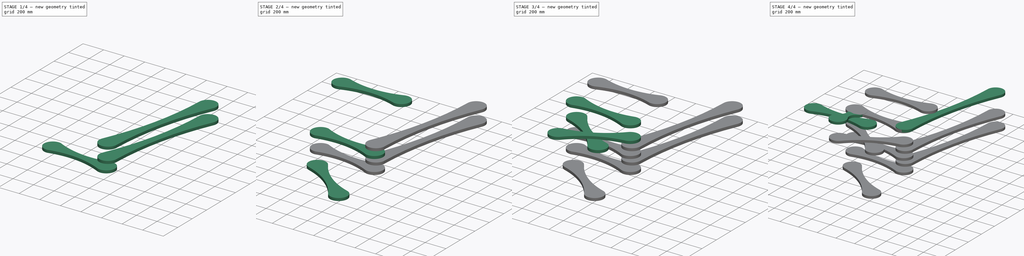
[diagram: build sequence overview — one tinted view per stage of 4, left to right]
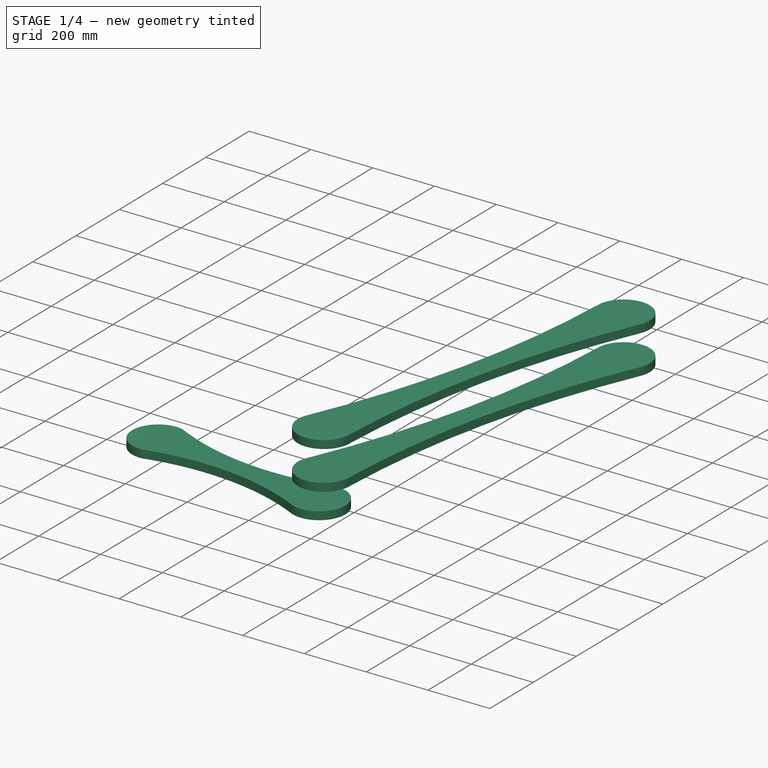
[diagram: stage 1 of 4 — iso view after this stage's code; geometry added in this stage tinted green]
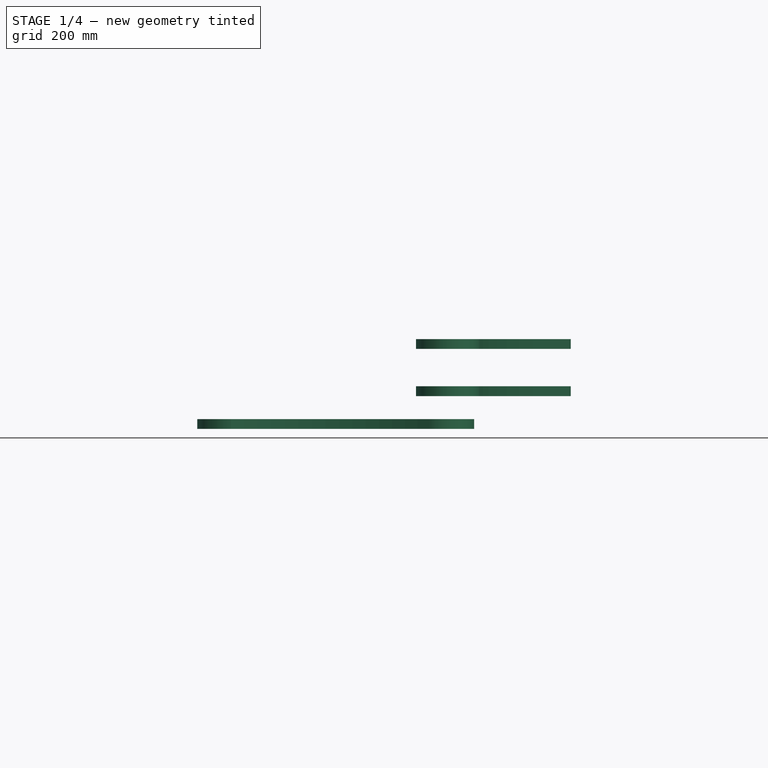
[diagram: stage 1 of 4 — front view after this stage's code; geometry added in this stage tinted green]
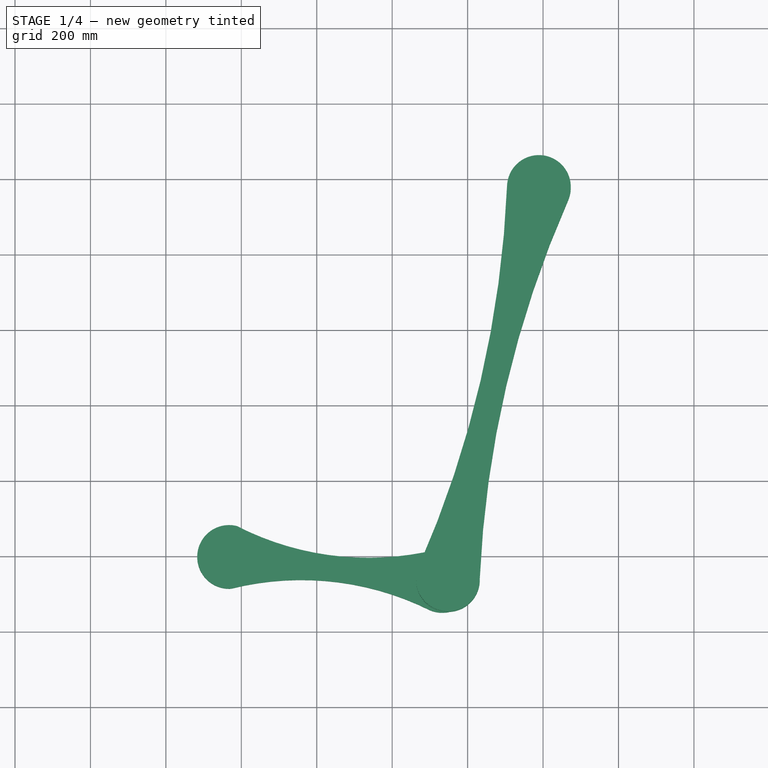
[diagram: stage 1 of 4 — top view after this stage's code; geometry added in this stage tinted green]
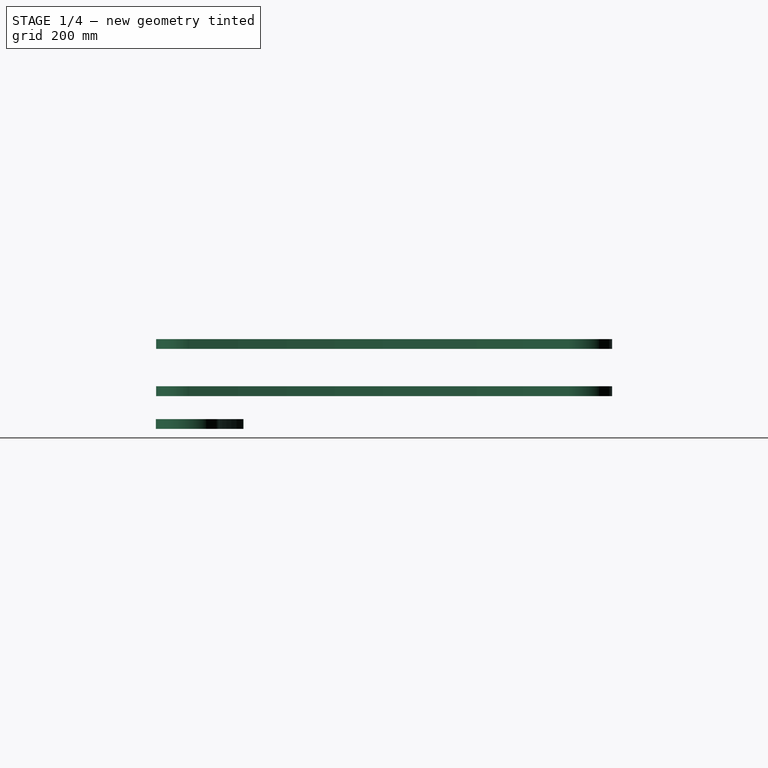
[diagram: stage 1 of 4 — right view after this stage's code; geometry added in this stage tinted green]
FCSTD DOCUMENT  (FreeCAD 0.20R29177 +426 (Git))
Label: rocking_chair
License: All rights reserved
LicenseURL: http://en.wikipedia.org/wiki/All_rights_reserved
objects: Part::Extrusion×12, Sketcher::SketchObject×11, Surface::Filling×9, App::Part×8, PartDesign::Body×1
note: 33 computed .brp shape members not serialized (recipe doc carries the construction recipe); baked Part::Feature solids carry a one-line shape summary decoded from their .brp

FEATURE [App::Part] Part005  label="Front Bottom001"
  Group = -> [Sketch005,Surface007,Extrude011,Extrude008]
  Origin = -> Origin006
  Placement = pos=(27,-41,256) rot=(0,0,1;0rad)
FEATURE [Part::Extrusion] Extrude012
  Base = -> Surface004
  Dir = (0,0,26)
  DirMode = 0
  FaceMakerClass = Part::FaceMakerBullseye
  LengthFwd = 26
  LengthRev = 0
  Placement = pos=(1153,115,-130) rot=(0,0,1;0rad)
  Solid = false
  Symmetric = false
FEATURE [Part::Extrusion] Extrude013
  Base = -> Surface004
  Dir = (0,0,26)
  DirMode = 0
  FaceMakerClass = Part::FaceMakerBullseye
  LengthFwd = 26
  LengthRev = 0
  Placement = pos=(1153,115,-255) rot=(0,0,1;0rad)
  Solid = false
  Symmetric = false
FEATURE [App::Part] Part  label="back"
  Group = -> [Sketch001,Surface004,Extrude003,Extrude012,Extrude013]
  Origin = -> Origin001
FEATURE [Sketcher::SketchObject] Sketch010  label="Ass003"
  FullyConstrained = false
  MapMode = 5
  Support = -> [XY_Plane011]
  sketch-geometry (8):
    g0: LineSegment StartX=-321.965 StartY=107.372 StartZ=0 EndX=95.4108 EndY=60.4971 EndZ=0
    g1: LineSegment StartX=95.4108 StartY=60.4971 StartZ=0 EndX=87.7099 EndY=-8.07178 EndZ=0
    g2: LineSegment StartX=87.7099 StartY=-8.07178 StartZ=0 EndX=-329.666 EndY=38.8032 EndZ=0
    g3: LineSegment StartX=-329.666 StartY=38.8032 StartZ=0 EndX=-321.965 EndY=107.372 EndZ=0
    g4: ArcOfCircle CenterX=-30.8324 CenterY=844.773 CenterZ=0 NormalX=0 NormalY=0 NormalZ=1 AngleXU=0 Radius=765.287 StartAngle=4.2388 EndAngle=4.95449
    g5: ArcOfCircle CenterX=-208.939 CenterY=-744.853 CenterZ=0 NormalX=0 NormalY=0 NormalZ=1 AngleXU=0 Radius=765.287 StartAngle=1.10967 EndAngle=1.81682
    g6: ArcOfCircle CenterX=-400.362 CenterY=81.7388 CenterZ=0 NormalX=0 NormalY=0 NormalZ=1 AngleXU=0 Radius=84.5 StartAngle=1.32577 EndAngle=4.77203
    g7: ArcOfCircle CenterX=164.821 CenterY=18.1876 CenterZ=0 NormalX=0 NormalY=0 NormalZ=1 AngleXU=0 Radius=84.5 StartAngle=4.30807 EndAngle=7.99867
  constraints (18):
    c: Equal(g0,g2)
    c: Equal(g3,g1)
    c: Perpendicular(g3,g0)
    c: Coincident(g0,g3)
    c: Coincident(g3,g2)
    c: Coincident(g1,g0)
    c: Coincident(g1,g2)
    c: Distance(g3) = 69
    c: Distance(g0) = 420
    c: Tangent(g4,g0)
    c: Tangent(g5,g2)
    c: Coincident(g6,g4)
    c: Coincident(g6,g5)
    c: Diameter(g6) = 169
    c: Coincident(g7,g4)
    c: Coincident(g7,g5)
    c: Equal(g6,g7)
    c: Equal(g5,g4)
FEATURE [Surface::Filling] Surface010
  Anisotropy = false
  BoundaryEdges = -> [Sketch010]
  BoundaryOrder = [0,0,0,0]
  Degree = 3
  Iterations = 2
  MaximumDegree = 8
  MaximumSegments = 9
  PointsOnCurve = 15
  TolAngular = 0.01
  TolCurvature = 0.1
  Tolerance2d = 1e-05
  Tolerance3d = 0.0001
FEATURE [Part::Extrusion] Extrude014
  Base = -> Surface010
  Dir = (0,0,26)
  DirMode = 0
  FaceMakerClass = Part::FaceMakerBullseye
  LengthFwd = 26
  LengthRev = 0
  Placement = pos=(368,117,-342) rot=(0,0,1;0rad)
  Solid = false
  Symmetric = false
FEATURE [App::Part] Part003  label="Ass001"
  Group = -> [Sketch004,Surface005,Extrude004,Surface009,Extrude010,Sketch009,Extrude014,Sketch010,Surface010]
  Origin = -> Origin004
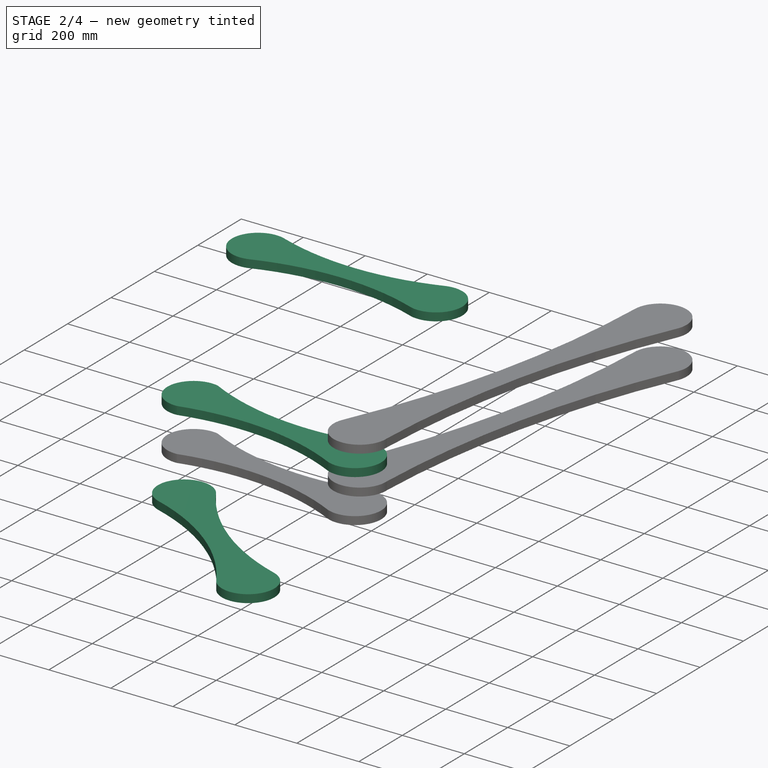
[diagram: stage 2 of 4 — iso view after this stage's code; geometry added in this stage tinted green]
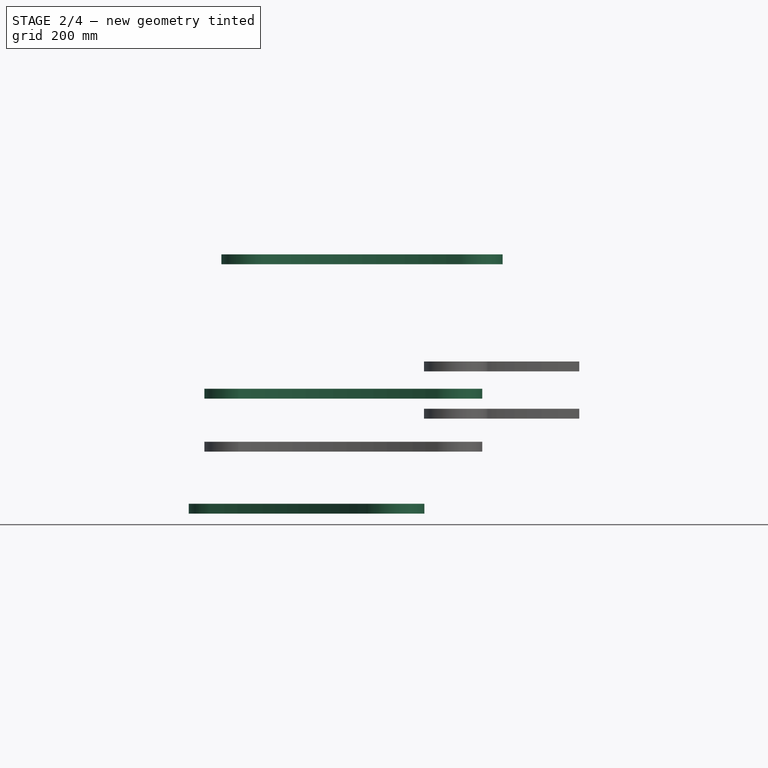
[diagram: stage 2 of 4 — front view after this stage's code; geometry added in this stage tinted green]
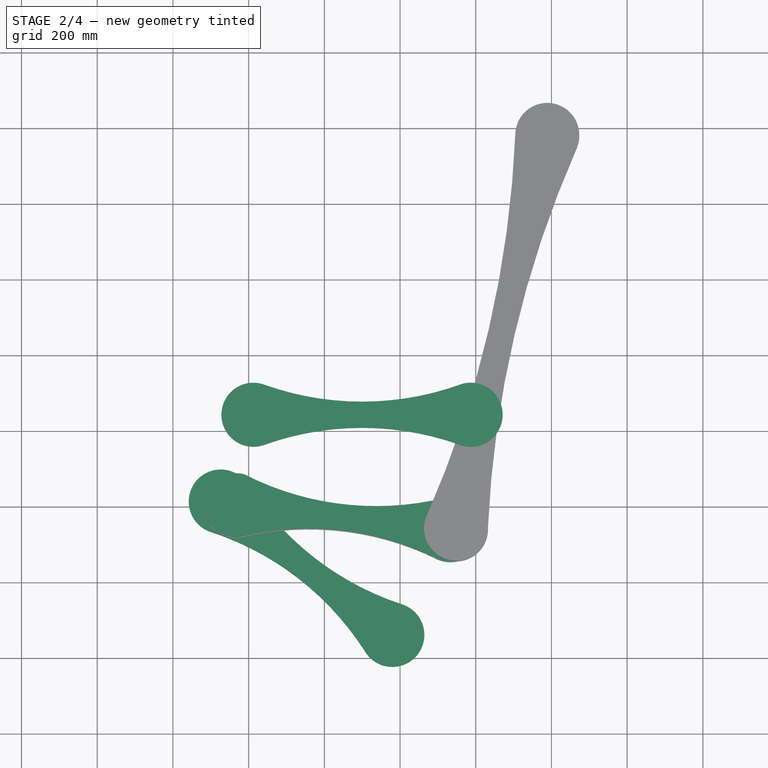
[diagram: stage 2 of 4 — top view after this stage's code; geometry added in this stage tinted green]
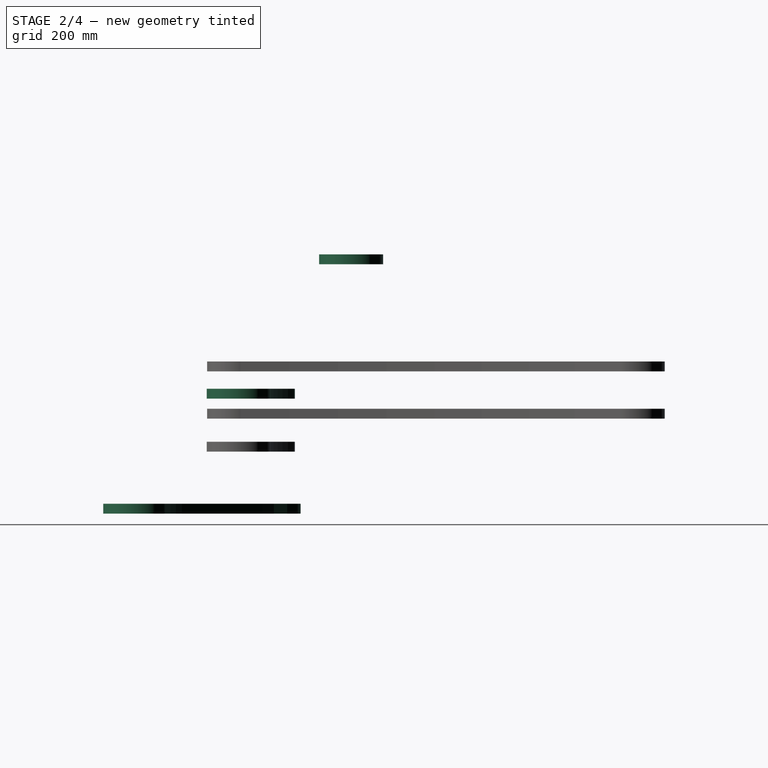
[diagram: stage 2 of 4 — right view after this stage's code; geometry added in this stage tinted green]
FEATURE [Sketcher::SketchObject] Sketch008  label="Arm rest001"
  FullyConstrained = false
  MapMode = 5
  Support = -> [XY_Plane009]
  sketch-geometry (8):
    g0: LineSegment StartX=-411.283 StartY=160.273 StartZ=0 EndX=8.71732 EndY=160.273 EndZ=0
    g1: LineSegment StartX=8.71732 StartY=160.273 StartZ=0 EndX=8.71732 EndY=91.2726 EndZ=0
    g2: LineSegment StartX=8.71732 StartY=91.2726 StartZ=0 EndX=-411.283 EndY=91.2726 EndZ=0
    g3: LineSegment StartX=-411.283 StartY=91.2726 StartZ=0 EndX=-411.283 EndY=160.273 EndZ=0
    g4: ArcOfCircle CenterX=-201.283 CenterY=925.245 CenterZ=0 NormalX=0 NormalY=0 NormalZ=1 AngleXU=0 Radius=764.972 StartAngle=4.36755 EndAngle=5.06356
    g5: ArcOfCircle CenterX=-201.283 CenterY=-673.7 CenterZ=0 NormalX=0 NormalY=0 NormalZ=1 AngleXU=0 Radius=764.972 StartAngle=1.22598 EndAngle=1.91564
    g6: ArcOfCircle CenterX=-488.419 CenterY=125.773 CenterZ=0 NormalX=0 NormalY=0 NormalZ=1 AngleXU=0 Radius=84.5 StartAngle=1.22627 EndAngle=5.05692
    g7: ArcOfCircle CenterX=85.6048 CenterY=125.861 CenterZ=0 NormalX=0 NormalY=0 NormalZ=1 AngleXU=0 Radius=84.5 StartAngle=4.37077 EndAngle=8.13875
  constraints (18):
    c: Coincident(g1,g0)
    c: Coincident(g2,g1)
    c: Coincident(g3,g0)
    c: Vertical(g3)
    c: Parallel(g0,g2)
    c: Parallel(g1,g3)
    c: Perpendicular(g3,g0)
    c: Distance(g3) = 69
    c: Coincident(g2,g3)
    c: Distance(g2) = 420
    c: Tangent(g4,g0)
    c: Tangent(g5,g2)
    c: Coincident(g6,g5)
    c: Coincident(g6,g4)
    c: Diameter(g6) = 169
    c: Coincident(g7,g4)
    c: Coincident(g7,g5)
    c: Diameter(g7) = 169
FEATURE [Surface::Filling] Surface008
  Anisotropy = false
  BoundaryEdges = -> [Sketch008]
  BoundaryOrder = [0,0,0,0]
  Degree = 3
  Iterations = 2
  MaximumDegree = 8
  MaximumSegments = 9
  PointsOnCurve = 15
  TolAngular = 0.01
  TolCurvature = 0.1
  Tolerance2d = 1e-05
  Tolerance3d = 0.0001
FEATURE [Part::Extrusion] Extrude009
  Base = -> Surface008
  Dir = (0,0,26)
  DirMode = 0
  FaceMakerClass = Part::FaceMakerBullseye
  LengthFwd = 26
  LengthRev = 0
  Placement = pos=(501,306,153) rot=(0,0,1;0rad)
  Solid = false
  Symmetric = false
FEATURE [App::Part] Part007  label="Outer_arm_rest"
  Group = -> [Surface008,Extrude009,Sketch008]
  Origin = -> Origin008
FEATURE [Sketcher::SketchObject] Sketch009  label="Ass002"
  FullyConstrained = false
  MapMode = 5
  Support = -> [XY_Plane004]
  sketch-geometry (8):
    g0: LineSegment StartX=-321.965 StartY=107.372 StartZ=0 EndX=95.4108 EndY=60.4971 EndZ=0
    g1: LineSegment StartX=95.4108 StartY=60.4971 StartZ=0 EndX=87.7099 EndY=-8.07178 EndZ=0
    g2: LineSegment StartX=87.7099 StartY=-8.07178 StartZ=0 EndX=-329.666 EndY=38.8032 EndZ=0
    g3: LineSegment StartX=-329.666 StartY=38.8032 StartZ=0 EndX=-321.965 EndY=107.372 EndZ=0
    g4: ArcOfCircle CenterX=-30.8324 CenterY=844.773 CenterZ=0 NormalX=0 NormalY=0 NormalZ=1 AngleXU=0 Radius=765.287 StartAngle=4.2388 EndAngle=4.95449
    g5: ArcOfCircle CenterX=-208.939 CenterY=-744.853 CenterZ=0 NormalX=0 NormalY=0 NormalZ=1 AngleXU=0 Radius=765.287 StartAngle=1.10967 EndAngle=1.81682
    g6: ArcOfCircle CenterX=-400.362 CenterY=81.7388 CenterZ=0 NormalX=0 NormalY=0 NormalZ=1 AngleXU=0 Radius=84.5 StartAngle=1.32577 EndAngle=4.77203
    g7: ArcOfCircle CenterX=164.821 CenterY=18.1876 CenterZ=0 NormalX=0 NormalY=0 NormalZ=1 AngleXU=0 Radius=84.5 StartAngle=4.30807 EndAngle=7.99867
  constraints (18):
    c: Equal(g0,g2)
    c: Equal(g3,g1)
    c: Perpendicular(g3,g0)
    c: Coincident(g0,g3)
    c: Coincident(g3,g2)
    c: Coincident(g1,g0)
    c: Coincident(g1,g2)
    c: Distance(g3) = 69
    c: Distance(g0) = 420
    c: Tangent(g4,g0)
    c: Tangent(g5,g2)
    c: Coincident(g6,g4)
    c: Coincident(g6,g5)
    c: Diameter(g6) = 169
    c: Coincident(g7,g4)
    c: Coincident(g7,g5)
    c: Equal(g6,g7)
    c: Equal(g5,g4)
FEATURE [Surface::Filling] Surface009
  Anisotropy = false
  BoundaryEdges = -> [Sketch009]
  BoundaryOrder = [0,0,0,0]
  Degree = 3
  Iterations = 2
  MaximumDegree = 8
  MaximumSegments = 9
  PointsOnCurve = 15
  TolAngular = 0.01
  TolCurvature = 0.1
  Tolerance2d = 1e-05
  Tolerance3d = 0.0001
FEATURE [Part::Extrusion] Extrude010
  Base = -> Surface009
  Dir = (0,0,26)
  DirMode = 0
  FaceMakerClass = Part::FaceMakerBullseye
  LengthFwd = 26
  LengthRev = 0
  Placement = pos=(368,117,-202) rot=(0,0,1;0rad)
  Solid = false
  Symmetric = false
FEATURE [Part::Extrusion] Extrude011
  Base = -> Surface007
  Dir = (0,0,26)
  DirMode = 0
  FaceMakerClass = Part::FaceMakerBullseye
  LengthFwd = 26
  LengthRev = 0
  Placement = pos=(246.348,38.7291,-506) rot=(0,0,-1;0.523599rad)
  Solid = false
  Symmetric = false
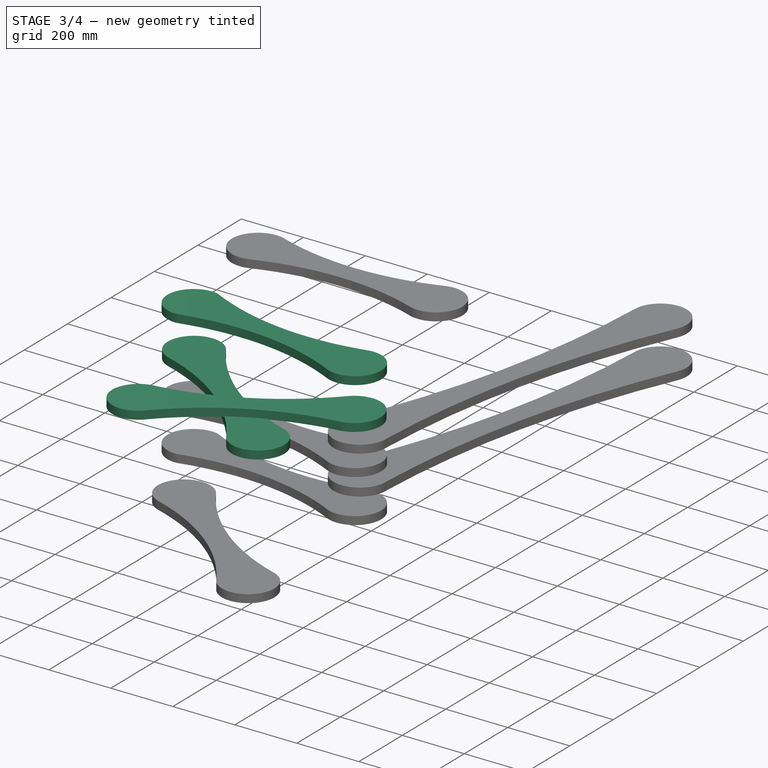
[diagram: stage 3 of 4 — iso view after this stage's code; geometry added in this stage tinted green]
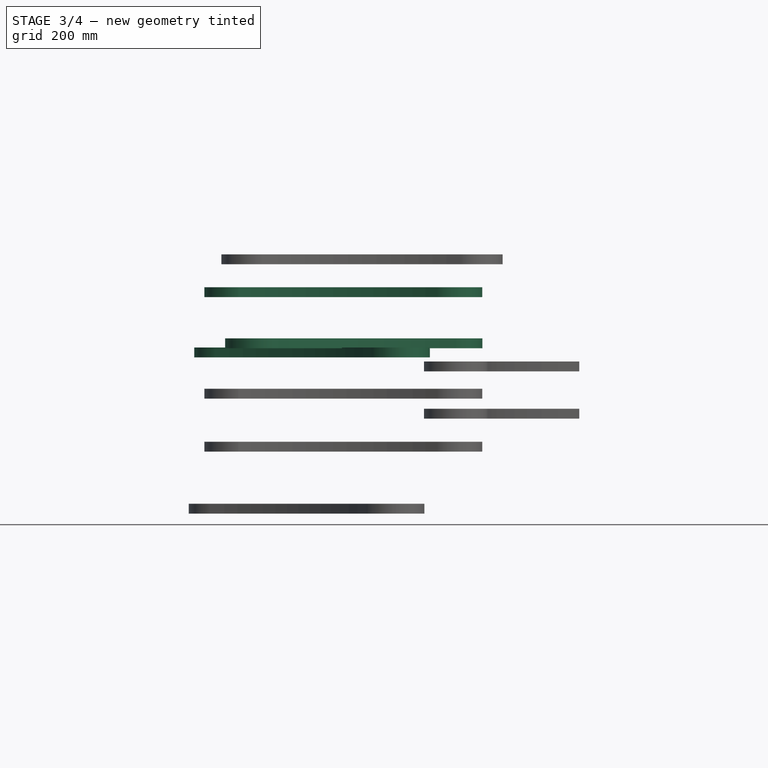
[diagram: stage 3 of 4 — front view after this stage's code; geometry added in this stage tinted green]
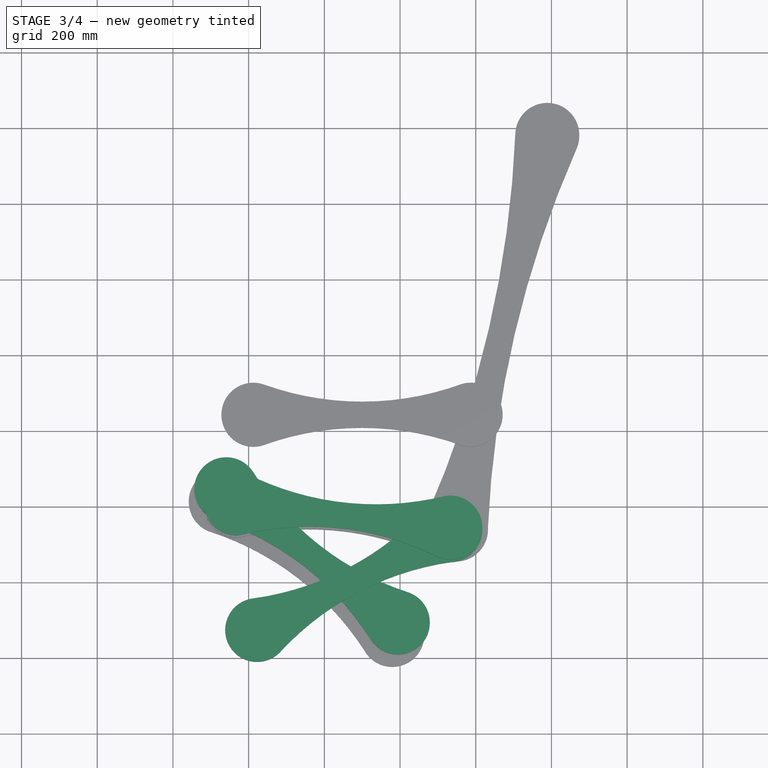
[diagram: stage 3 of 4 — top view after this stage's code; geometry added in this stage tinted green]
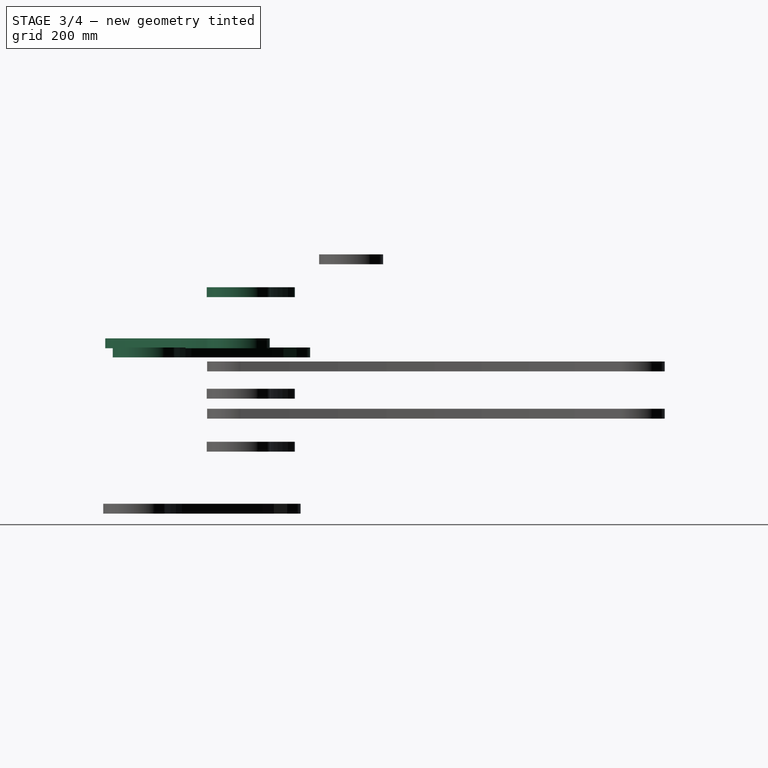
[diagram: stage 3 of 4 — right view after this stage's code; geometry added in this stage tinted green]
FEATURE [Surface::Filling] Surface005
  Anisotropy = false
  BoundaryEdges = -> [Sketch004]
  BoundaryOrder = [0,0,0,0]
  Degree = 3
  Iterations = 2
  MaximumDegree = 8
  MaximumSegments = 9
  PointsOnCurve = 15
  TolAngular = 0.01
  TolCurvature = 0.1
  Tolerance2d = 1e-05
  Tolerance3d = 0.0001
FEATURE [Part::Extrusion] Extrude004
  Base = -> Surface005
  Dir = (0,0,26)
  DirMode = 0
  FaceMakerClass = Part::FaceMakerBullseye
  LengthFwd = 26
  LengthRev = 0
  Placement = pos=(368,117,66) rot=(0,0,1;0rad)
  Solid = false
  Symmetric = false
FEATURE [Surface::Filling] Surface006
  Anisotropy = false
  BoundaryEdges = -> [Sketch006]
  BoundaryOrder = [0,0,0,0]
  Degree = 3
  Iterations = 2
  MaximumDegree = 8
  MaximumSegments = 9
  PointsOnCurve = 15
  TolAngular = 0.01
  TolCurvature = 0.1
  Tolerance2d = 1e-05
  Tolerance3d = 0.0001
FEATURE [Part::Extrusion] Extrude006
  Base = -> Surface006
  Dir = (0,0,26)
  DirMode = 0
  FaceMakerClass = Part::FaceMakerBullseye
  LengthFwd = 26
  LengthRev = 0
  Placement = pos=(393,219,-69) rot=(0,0,1;0rad)
  Solid = false
  Symmetric = false
FEATURE [App::Part] Part004  label="Rear Bottom001"
  Group = -> [Sketch006,Surface006,Extrude006]
  Origin = -> Origin005
FEATURE [Surface::Filling] Surface007
  Anisotropy = false
  BoundaryEdges = -> [Sketch005]
  BoundaryOrder = [0,0,0,0]
  Degree = 3
  Iterations = 2
  MaximumDegree = 8
  MaximumSegments = 9
  PointsOnCurve = 15
  TolAngular = 0.01
  TolCurvature = 0.1
  Tolerance2d = 1e-05
  Tolerance3d = 0.0001
FEATURE [Part::Extrusion] Extrude008
  Base = -> Surface007
  Dir = (0,0,26)
  DirMode = 0
  FaceMakerClass = Part::FaceMakerBullseye
  LengthFwd = 26
  LengthRev = 0
  Placement = pos=(260.848,63.8438,-93) rot=(0,0,-1;0.523599rad)
  Solid = false
  Symmetric = false
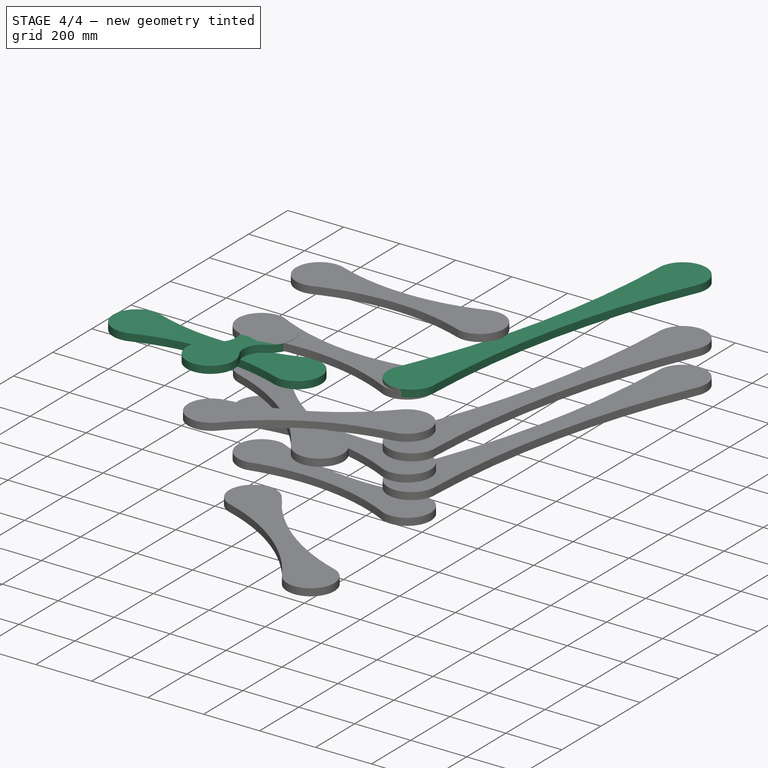
[diagram: stage 4 of 4 — iso view after this stage's code; geometry added in this stage tinted green]
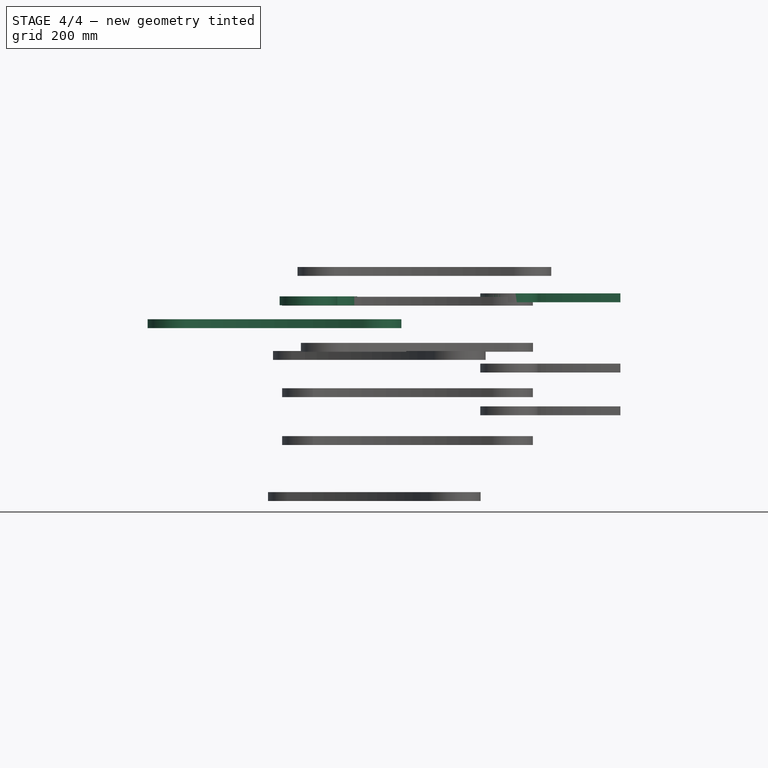
[diagram: stage 4 of 4 — front view after this stage's code; geometry added in this stage tinted green]
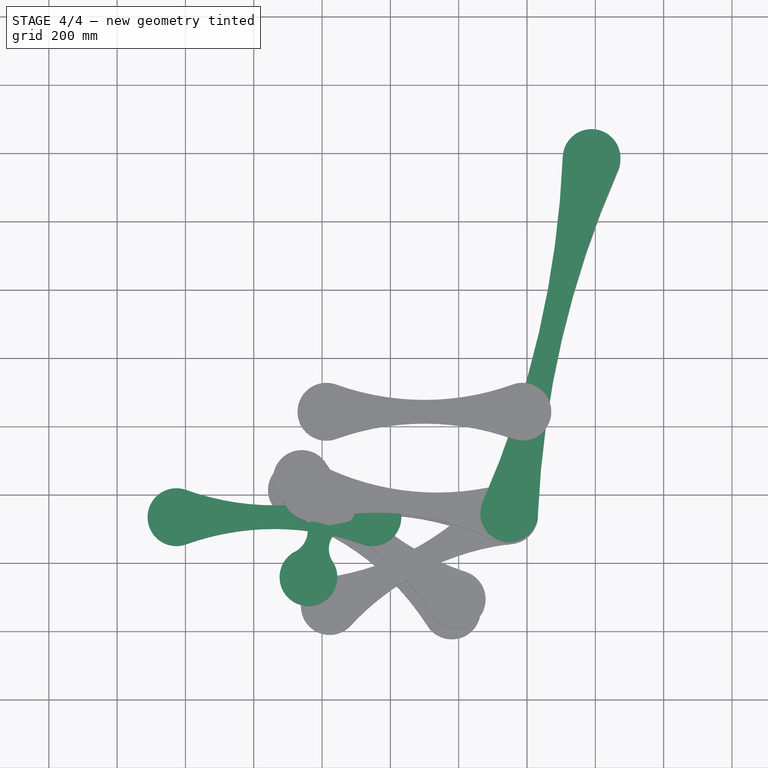
[diagram: stage 4 of 4 — top view after this stage's code; geometry added in this stage tinted green]
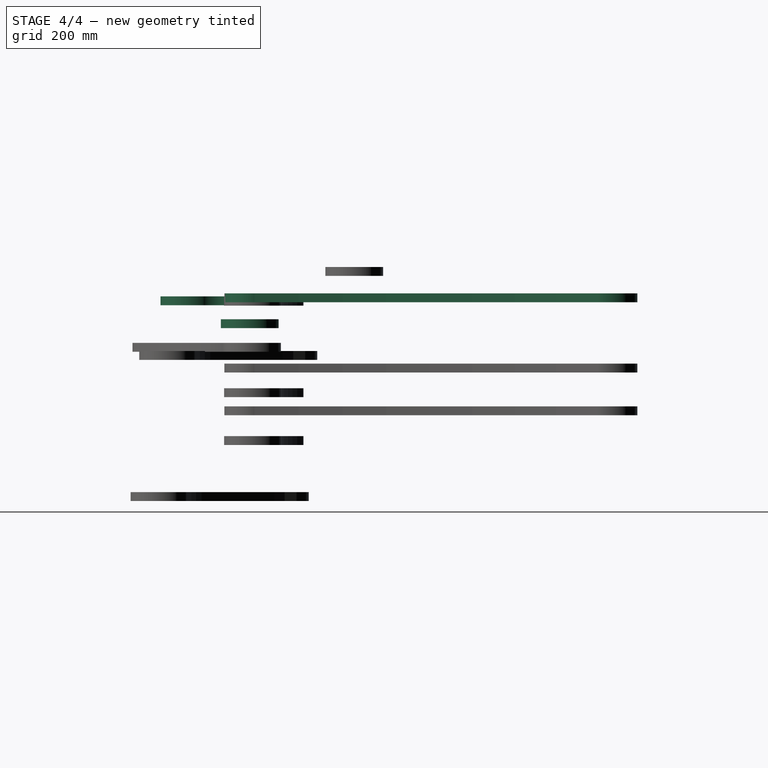
[diagram: stage 4 of 4 — right view after this stage's code; geometry added in this stage tinted green]
FEATURE [Sketcher::SketchObject] Sketch
  FullyConstrained = false
  MapMode = 5
  Support = -> [XY_Plane]
  sketch-geometry (26):
    g0: LineSegment StartX=-101.858 StartY=-51.3091 StartZ=0 EndX=54.4824 EndY=-51.3091 EndZ=0
    g1: LineSegment StartX=4.2134 StartY=31.285 StartZ=0 EndX=-78.4121 EndY=-49.3154 EndZ=0
    g2: LineSegment StartX=-84.4419 StartY=-9.11787 StartZ=0 EndX=15.6209 EndY=-48.274 EndZ=0
    g3: LineSegment StartX=-82.9444 StartY=-6.55079 StartZ=0 EndX=10.2118 EndY=-6.55079 EndZ=0
    g4: LineSegment StartX=-51.3437 StartY=-18.8242 StartZ=0 EndX=13.4606 EndY=116.455 EndZ=0
    g5: LineSegment StartX=-88.4465 StartY=40.1643 StartZ=0 EndX=2.68459 EndY=35.709 EndZ=0
    g6: LineSegment StartX=-88.1322 StartY=36.0121 StartZ=0 EndX=-88.1322 EndY=-2.0664 EndZ=0
    g7: LineSegment StartX=-88.1322 StartY=36.0121 StartZ=0 EndX=-91.7689 EndY=36.0121 EndZ=0
    g8: LineSegment StartX=-91.7689 StartY=36.0121 StartZ=0 EndX=-91.7689 EndY=-2.49425 EndZ=0
    g9: LineSegment StartX=-91.7689 StartY=-2.49425 StartZ=0 EndX=-88.1322 EndY=-2.0664 EndZ=0
    g10: LineSegment StartX=-88.4465 StartY=40.1643 StartZ=0 EndX=-88.4465 EndY=44.1412 EndZ=0
    g11: LineSegment StartX=-88.4465 StartY=44.1412 StartZ=0 EndX=3.85512 EndY=39.6488 EndZ=0
    g12: LineSegment StartX=3.85512 StartY=39.6488 StartZ=0 EndX=2.68459 EndY=35.709 EndZ=0
    g13: LineSegment StartX=-82.9444 StartY=-6.55079 StartZ=0 EndX=-82.1423 EndY=-8.91197 EndZ=0
    g14: LineSegment StartX=-82.1423 StartY=-8.91197 StartZ=0 EndX=10.2728 EndY=-8.91197 EndZ=0
    g15: LineSegment StartX=10.2728 StartY=-8.91197 StartZ=0 EndX=10.2118 EndY=-6.55079 EndZ=0
    g16: LineSegment StartX=-51.3437 StartY=-18.8242 StartZ=0 EndX=-54.7601 EndY=-18.1107 EndZ=0
    g17: LineSegment StartX=-54.7601 StartY=-18.1107 StartZ=0 EndX=6.38774 EndY=119.869 EndZ=0
    g18: LineSegment StartX=6.38774 StartY=119.869 StartZ=0 EndX=13.4606 EndY=116.455 EndZ=0
    g19: LineSegment StartX=-84.4419 StartY=-9.11787 StartZ=0 EndX=-86.7293 EndY=-12.5177 EndZ=0
    g20: LineSegment StartX=-86.7293 StartY=-12.5177 StartZ=0 EndX=14.0662 EndY=-50.1703 EndZ=0
    g21: LineSegment StartX=14.0662 StartY=-50.1703 StartZ=0 EndX=15.6209 EndY=-48.274 EndZ=0
    g22: LineSegment StartX=-78.4121 StartY=-49.3154 StartZ=0 EndX=-76.0667 EndY=-49.6704 EndZ=0
    g23: LineSegment StartX=-76.0667 StartY=-49.6704 StartZ=0 EndX=5.73596 EndY=30.1329 EndZ=0
    g24: LineSegment StartX=5.73596 StartY=30.1329 StartZ=0 EndX=4.2134 EndY=31.285 EndZ=0
    g25: LineSegment StartX=-101.858 StartY=-51.3091 StartZ=0 EndX=-100.989 EndY=-54.9646 EndZ=0
  constraints (29):
    c: Horizontal(g0)
    c: Horizontal(g3)
    c: Vertical(g6)
    c: Coincident(g7,g6)
    c: Horizontal(g7)
    c: Coincident(g8,g7)
    c: Vertical(g8)
    c: Coincident(g9,g8)
    c: Coincident(g9,g6)
    c: Coincident(g10,g5)
    c: Vertical(g10)
    c: Coincident(g11,g10)
    c: Coincident(g12,g11)
    c: Coincident(g12,g5)
    c: Coincident(g13,g3)
    c: Coincident(g14,g13)
    c: Horizontal(g14)
    c: Coincident(g15,g14)
    c: Coincident(g15,g3)
    c: Coincident(g16,g4)
    c: Coincident(g18,g17)
    c: Coincident(g18,g4)
    c: Coincident(g19,g2)
    c: Coincident(g20,g19)
    c: Coincident(g21,g2)
    c: Coincident(g22,g1)
    c: Coincident(g23,g22)
    c: Coincident(g24,g1)
    c: Coincident(g25,g0)
FEATURE [PartDesign::Body] Body
  Group = -> [Sketch]
  Origin = -> Origin
FEATURE [Sketcher::SketchObject] Sketch001  label="Back"
  FullyConstrained = false
  MapMode = 2
  Support = -> [Sketch001]
  sketch-geometry (8):
    g0: LineSegment StartX=-415.041 StartY=993.678 StartZ=0 EndX=-621.755 EndY=102.949 EndZ=0
    g1: LineSegment StartX=-347.827 StartY=978.079 StartZ=0 EndX=-554.541 EndY=87.3509 EndZ=0
    g2: LineSegment StartX=-621.755 StartY=102.949 StartZ=0 EndX=-554.541 EndY=87.3509 EndZ=0
    g3: LineSegment StartX=-415.041 StartY=993.678 StartZ=0 EndX=-347.827 EndY=978.079 EndZ=0
    g4: ArcOfCircle CenterX=2272.09 CenterY=-99.2841 CenterZ=0 NormalX=0 NormalY=0 NormalZ=1 AngleXU=0 Radius=2795.65 StartAngle=2.72695 EndAngle=3.09724
    g5: ArcOfCircle CenterX=-3241.68 CenterY=1180.31 CenterZ=0 NormalX=0 NormalY=0 NormalZ=1 AngleXU=0 Radius=2795.65 StartAngle=5.86854 EndAngle=6.24175
    g6: ArcOfCircle CenterX=-605.221 CenterY=20.8526 CenterZ=0 NormalX=0 NormalY=0 NormalZ=1 AngleXU=0 Radius=84.5 StartAngle=2.73789 EndAngle=6.32851
    g7: ArcOfCircle CenterX=-363.996 CenterY=1061.02 CenterZ=0 NormalX=0 NormalY=0 NormalZ=1 AngleXU=0 Radius=84.5 StartAngle=5.8686 EndAngle=9.38334
  constraints (17):
    c: Equal(g0,g1)
    c: Distance(g0) = 914.4
    c: Coincident(g2,g0)
    c: Coincident(g2,g1)
    c: Coincident(g3,g0)
    c: Coincident(g3,g1)
    c: Parallel(g0,g1)
    c: Perpendicular(g3,g1)
    c: Distance(g3) = 69
    c: Tangent(g5,g0)
    c: Tangent(g4,g1)
    c: Coincident(g6,g5)
    c: Coincident(g6,g4)
    c: Diameter(g6) = 169
    c: Coincident(g7,g5)
    c: Coincident(g7,g4)
    c: Diameter(g7) = 169
FEATURE [Sketcher::SketchObject] Sketch002  label="Arm rest"
  FullyConstrained = false
  MapMode = 5
  Support = -> [XY_Plane002]
  sketch-geometry (8):
    g0: LineSegment StartX=-411.283 StartY=160.273 StartZ=0 EndX=8.71732 EndY=160.273 EndZ=0
    g1: LineSegment StartX=8.71732 StartY=160.273 StartZ=0 EndX=8.71732 EndY=91.2726 EndZ=0
    g2: LineSegment StartX=8.71732 StartY=91.2726 StartZ=0 EndX=-411.283 EndY=91.2726 EndZ=0
    g3: LineSegment StartX=-411.283 StartY=91.2726 StartZ=0 EndX=-411.283 EndY=160.273 EndZ=0
    g4: ArcOfCircle CenterX=-201.283 CenterY=925.245 CenterZ=0 NormalX=0 NormalY=0 NormalZ=1 AngleXU=0 Radius=764.972 StartAngle=4.36755 EndAngle=5.06356
    g5: ArcOfCircle CenterX=-201.283 CenterY=-673.7 CenterZ=0 NormalX=0 NormalY=0 NormalZ=1 AngleXU=0 Radius=764.972 StartAngle=1.22598 EndAngle=1.91564
    g6: ArcOfCircle CenterX=-488.419 CenterY=125.773 CenterZ=0 NormalX=0 NormalY=0 NormalZ=1 AngleXU=0 Radius=84.5 StartAngle=1.22627 EndAngle=5.05692
    g7: ArcOfCircle CenterX=85.6048 CenterY=125.861 CenterZ=0 NormalX=0 NormalY=0 NormalZ=1 AngleXU=0 Radius=84.5 StartAngle=4.37077 EndAngle=8.13875
  constraints (18):
    c: Coincident(g1,g0)
    c: Coincident(g2,g1)
    c: Coincident(g3,g0)
    c: Vertical(g3)
    c: Parallel(g0,g2)
    c: Parallel(g1,g3)
    c: Perpendicular(g3,g0)
    c: Distance(g3) = 69
    c: Coincident(g2,g3)
    c: Distance(g2) = 420
    c: Tangent(g4,g0)
    c: Tangent(g5,g2)
    c: Coincident(g6,g5)
    c: Coincident(g6,g4)
    c: Diameter(g6) = 169
    c: Coincident(g7,g4)
    c: Coincident(g7,g5)
    c: Diameter(g7) = 169
FEATURE [Sketcher::SketchObject] Sketch003  label="Arm rest rest"
  FullyConstrained = false
  MapMode = 5
  Support = -> [XY_Plane003]
  sketch-geometry (8):
    g0: LineSegment StartX=-91.2681 StartY=88.9183 StartZ=0 EndX=-22.2681 EndY=88.9183 EndZ=0
    g1: LineSegment StartX=-22.2681 StartY=88.9183 StartZ=0 EndX=-22.2681 EndY=19.9183 EndZ=0
    g2: LineSegment StartX=-22.2681 StartY=19.9183 StartZ=0 EndX=-91.2681 EndY=19.9183 EndZ=0
    g3: LineSegment StartX=-91.2681 StartY=19.9183 StartZ=0 EndX=-91.2681 EndY=88.9183 EndZ=0
    g4: ArcOfCircle CenterX=-159.834 CenterY=52.8698 CenterZ=0 NormalX=0 NormalY=0 NormalZ=1 AngleXU=0 Radius=68.5662 StartAngle=5.40455 EndAngle=7.11547
    g5: ArcOfCircle CenterX=45.5359 CenterY=53.2438 CenterZ=0 NormalX=0 NormalY=0 NormalZ=1 AngleXU=0 Radius=67.804 StartAngle=2.30714 EndAngle=4.04471
    g6: ArcOfCircle CenterX=-56.7883 CenterY=166.055 CenterZ=0 NormalX=0 NormalY=0 NormalZ=1 AngleXU=0 Radius=84.5 StartAngle=5.44936 EndAngle=10.257
    g7: ArcOfCircle CenterX=-56.302 CenterY=-59.645 CenterZ=0 NormalX=0 NormalY=0 NormalZ=1 AngleXU=0 Radius=84.5 StartAngle=2.35657 EndAngle=7.06682
  constraints (21):
    c: Coincident(g1,g0)
    c: Vertical(g1)
    c: Horizontal(g2)
    c: Coincident(g3,g2)
    c: Coincident(g3,g0)
    c: Vertical(g3)
    c: Parallel(g0,g2)
    c: Equal(g0,g2)
    c: Equal(g3,g1)
    c: Distance(g1) = 69
    c: Distance(g2) = 69
    c: PointOnObject(g5,g-1)
    c: Tangent(g4,g3)
    c: Tangent(g5,g1)
    c: PointOnObject(g6,g-2)
    c: Coincident(g7,g4)
    c: Coincident(g7,g5)
    c: Diameter(g7) = 169
    c: Coincident(g6,g4)
    c: Coincident(g6,g5)
    c: Diameter(g6) = 169
FEATURE [Sketcher::SketchObject] Sketch004  label="Ass"
  FullyConstrained = false
  MapMode = 5
  Support = -> [XY_Plane004]
  sketch-geometry (8):
    g0: LineSegment StartX=-321.965 StartY=107.372 StartZ=0 EndX=95.4108 EndY=60.4971 EndZ=0
    g1: LineSegment StartX=95.4108 StartY=60.4971 StartZ=0 EndX=87.7099 EndY=-8.07178 EndZ=0
    g2: LineSegment StartX=87.7099 StartY=-8.07178 StartZ=0 EndX=-329.666 EndY=38.8032 EndZ=0
    g3: LineSegment StartX=-329.666 StartY=38.8032 StartZ=0 EndX=-321.965 EndY=107.372 EndZ=0
    g4: ArcOfCircle CenterX=-30.8324 CenterY=844.773 CenterZ=0 NormalX=0 NormalY=0 NormalZ=1 AngleXU=0 Radius=765.287 StartAngle=4.2388 EndAngle=4.95449
    g5: ArcOfCircle CenterX=-208.939 CenterY=-744.853 CenterZ=0 NormalX=0 NormalY=0 NormalZ=1 AngleXU=0 Radius=765.287 StartAngle=1.10967 EndAngle=1.81682
    g6: ArcOfCircle CenterX=-400.362 CenterY=81.7388 CenterZ=0 NormalX=0 NormalY=0 NormalZ=1 AngleXU=0 Radius=84.5 StartAngle=1.32577 EndAngle=4.77203
    g7: ArcOfCircle CenterX=164.821 CenterY=18.1876 CenterZ=0 NormalX=0 NormalY=0 NormalZ=1 AngleXU=0 Radius=84.5 StartAngle=4.30807 EndAngle=7.99867
  constraints (18):
    c: Equal(g0,g2)
    c: Equal(g3,g1)
    c: Perpendicular(g3,g0)
    c: Coincident(g0,g3)
    c: Coincident(g3,g2)
    c: Coincident(g1,g0)
    c: Coincident(g1,g2)
    c: Distance(g3) = 69
    c: Distance(g0) = 420
    c: Tangent(g4,g0)
    c: Tangent(g5,g2)
    c: Coincident(g6,g4)
    c: Coincident(g6,g5)
    c: Diameter(g6) = 169
    c: Coincident(g7,g4)
    c: Coincident(g7,g5)
    c: Equal(g6,g7)
    c: Equal(g5,g4)
FEATURE [Sketcher::SketchObject] Sketch005  label="Front Bottom"
  FullyConstrained = false
  MapMode = 5
  Support = -> [XY_Plane006]
  sketch-geometry (8):
    g0: LineSegment StartX=-293.133 StartY=-53.0149 StartZ=0 EndX=122.936 EndY=-110.34 EndZ=0
    g1: LineSegment StartX=122.936 StartY=-110.34 StartZ=0 EndX=132.354 EndY=-41.9862 EndZ=0
    g2: LineSegment StartX=132.354 StartY=-41.9862 StartZ=0 EndX=-283.715 EndY=15.3393 EndZ=0
    g3: LineSegment StartX=-283.715 StartY=15.3393 StartZ=0 EndX=-293.133 EndY=-53.0149 EndZ=0
    g4: ArcOfCircle CenterX=28.7298 CenterY=744.491 CenterZ=0 NormalX=0 NormalY=0 NormalZ=1 AngleXU=0 Radius=764.973 StartAngle=4.23066 EndAngle=4.92028
    g5: ArcOfCircle CenterX=-189.509 CenterY=-839.492 CenterZ=0 NormalX=0 NormalY=0 NormalZ=1 AngleXU=0 Radius=764.973 StartAngle=1.08907 EndAngle=1.77869
    g6: ArcOfCircle CenterX=-364.839 CenterY=-8.30955 CenterZ=0 NormalX=0 NormalY=0 NormalZ=1 AngleXU=0 Radius=84.5 StartAngle=1.08907 EndAngle=4.92028
    g7: ArcOfCircle CenterX=204.06 CenterY=-86.6916 CenterZ=0 NormalX=0 NormalY=0 NormalZ=1 AngleXU=0 Radius=84.5 StartAngle=4.23066 EndAngle=8.06187
  constraints (17):
    c: Coincident(g1,g0)
    c: Coincident(g2,g1)
    c: Coincident(g3,g2)
    c: Coincident(g3,g0)
    c: Perpendicular(g3,g2)
    c: Perpendicular(g0,g1)
    c: Equal(g3,g1)
    c: Distance(g3) = 69
    c: Distance(g2) = 420
    c: Tangent(g4,g2)
    c: Tangent(g5,g0)
    c: Tangent(g7,g4) = 1.5708
    c: Tangent(g7,g5) = 1.5708
    c: Diameter(g7) = 169
    c: Tangent(g6,g4) = 1.5708
    c: Tangent(g6,g5) = 1.5708
    c: Equal(g6,g7)
FEATURE [Sketcher::SketchObject] Sketch006  label="Rear Bottom"
  FullyConstrained = false
  MapMode = 5
  Support = -> [XY_Plane005]
  sketch-geometry (8):
    g0: LineSegment StartX=85.2265 StartY=-154.199 StartZ=0 EndX=53.4101 EndY=-92.9719 EndZ=0
    g1: LineSegment StartX=53.4101 StartY=-92.9719 StartZ=0 EndX=-319.275 EndY=-286.637 EndZ=0
    g2: LineSegment StartX=-319.275 StartY=-286.637 StartZ=0 EndX=-287.458 EndY=-347.864 EndZ=0
    g3: LineSegment StartX=-287.458 StartY=-347.864 StartZ=0 EndX=85.2265 EndY=-154.199 EndZ=0
    g4: ArcOfCircle CenterX=-485.667 CenterY=488.989 CenterZ=0 NormalX=0 NormalY=0 NormalZ=1 AngleXU=0 Radius=764.972 StartAngle=4.84682 EndAngle=5.53644
    g5: ArcOfCircle CenterX=251.619 CenterY=-929.825 CenterZ=0 NormalX=0 NormalY=0 NormalZ=1 AngleXU=0 Radius=764.972 StartAngle=1.70524 EndAngle=2.39994
    g6: ArcOfCircle CenterX=-370.804 CenterY=-352.382 CenterZ=0 NormalX=0 NormalY=0 NormalZ=1 AngleXU=0 Radius=84.209 StartAngle=1.71781 EndAngle=5.47824
    g7: ArcOfCircle CenterX=139.486 CenterY=-87.1225 CenterZ=0 NormalX=0 NormalY=0 NormalZ=1 AngleXU=0 Radius=85.1755 StartAngle=4.82531 EndAngle=8.69951
  constraints (16):
    c: Coincident(g1,g0)
    c: Coincident(g2,g1)
    c: Coincident(g3,g2)
    c: Coincident(g3,g0)
    c: Perpendicular(g1,g2)
    c: Perpendicular(g3,g0)
    c: Parallel(g1,g3)
    c: Distance(g1) = 420
    c: Distance(g2) = 69
    c: Tangent(g5,g3)
    c: Tangent(g4,g1)
    c: Coincident(g7,g4)
    c: Equal(g5,g4)
    c: Coincident(g7,g5)
    c: Coincident(g6,g5)
    c: Coincident(g6,g4)
FEATURE [Sketcher::SketchObject] Sketch007  label="Rock"
  FullyConstrained = false
  MapMode = 5
  Support = -> [XY_Plane007]
  sketch-geometry (4):
    g0: LineSegment StartX=-102.33 StartY=-50.9628 StartZ=0 EndX=54.7043 EndY=-50.9628 EndZ=0
    g1: LineSegment StartX=54.7043 StartY=-50.9628 StartZ=0 EndX=55.2277 EndY=-56.7207 EndZ=0
    g2: LineSegment StartX=55.2277 StartY=-56.7207 StartZ=0 EndX=-100.498 EndY=-56.7207 EndZ=0
    g3: LineSegment StartX=-100.498 StartY=-56.7207 StartZ=0 EndX=-102.33 EndY=-50.9628 EndZ=0
  constraints (6):
    c: Horizontal(g0)
    c: Coincident(g1,g0)
    c: Coincident(g2,g1)
    c: Horizontal(g2)
    c: Coincident(g3,g2)
    c: Coincident(g3,g0)
FEATURE [App::Part] Part006  label="Rock001"
  Group = -> [Sketch007]
  Origin = -> Origin007
FEATURE [Surface::Filling] Surface
  Anisotropy = false
  BoundaryEdges = -> [Sketch002]
  BoundaryOrder = [0,0,0,0]
  Degree = 3
  Iterations = 2
  MaximumDegree = 8
  MaximumSegments = 9
  PointsOnCurve = 15
  TolAngular = 0.01
  TolCurvature = 0.1
  Tolerance2d = 1e-05
  Tolerance3d = 0.0001
FEATURE [Part::Extrusion] Extrude
  Base = -> Surface
  Dir = (0,0,26)
  DirMode = 0
  FaceMakerClass = Part::FaceMakerBullseye
  LengthFwd = 26
  LengthRev = 0
  Placement = pos=(62,0,0) rot=(0,0,1;0rad)
  Solid = false
  Symmetric = false
FEATURE [App::Part] Part001  label="inner_arm_rest"
  Group = -> [Sketch002,Surface,Extrude]
  Origin = -> Origin002
  Placement = pos=(443,298,41) rot=(0,0,1;0rad)
FEATURE [Surface::Filling] Surface003  label="arm_rest_rest_surface"
  Anisotropy = false
  BoundaryEdges = -> [Sketch003]
  BoundaryOrder = [0,0,0,0]
  Degree = 3
  Iterations = 2
  MaximumDegree = 8
  MaximumSegments = 9
  PointsOnCurve = 15
  TolAngular = 0.01
  TolCurvature = 0.1
  Tolerance2d = 1e-05
  Tolerance3d = 0.0001
FEATURE [Part::Extrusion] Extrude002
  Base = -> Surface003
  Dir = (0,0,26)
  DirMode = 0
  FaceMakerClass = Part::FaceMakerBullseye
  LengthFwd = 26
  LengthRev = 0
  Placement = pos=(29.9437,-8.02339,67) rot=(0,0,1;6.02139rad)
  Solid = false
  Symmetric = false
FEATURE [App::Part] Part002  label="Arm Rest Rest"
  Group = -> [Sketch003,Surface003,Extrude002]
  Origin = -> Origin003
  Placement = pos=(0,256,6) rot=(0,0,1;0rad)
FEATURE [Surface::Filling] Surface004
  Anisotropy = false
  BoundaryEdges = -> [Sketch001]
  BoundaryOrder = [0,0,0,0]
  Degree = 3
  Iterations = 2
  MaximumDegree = 8
  MaximumSegments = 9
  PointsOnCurve = 15
  TolAngular = 0.01
  TolCurvature = 0.1
  Tolerance2d = 1e-05
  Tolerance3d = 0.0001
FEATURE [Part::Extrusion] Extrude003
  Base = -> Surface004
  Dir = (0,0,26)
  DirMode = 0
  FaceMakerClass = Part::FaceMakerBullseye
  LengthFwd = 26
  LengthRev = 0
  Placement = pos=(1153,115,76) rot=(0,0,1;0rad)
  Solid = false
  Symmetric = false
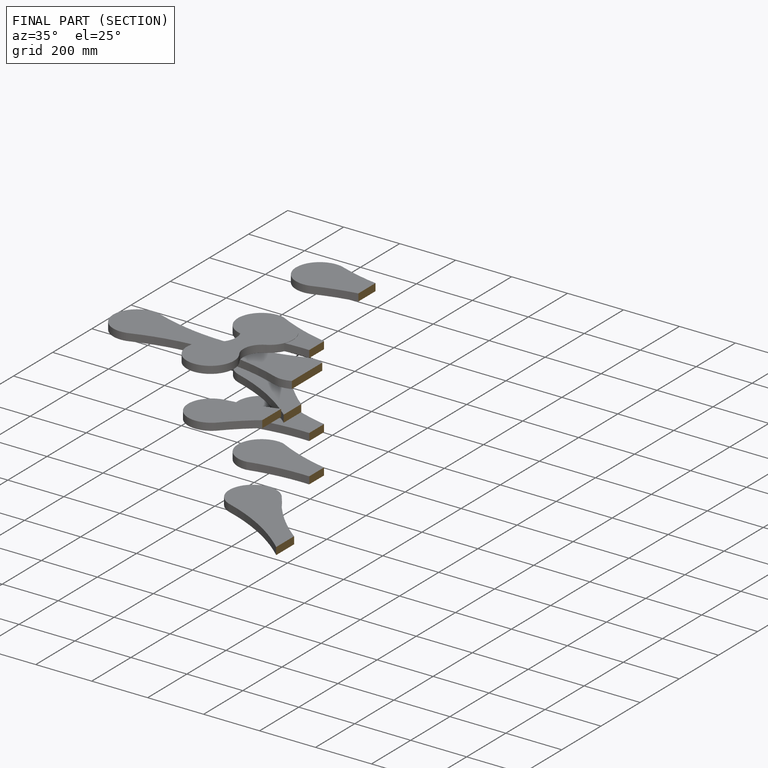
[diagram: finished part — half-section view (interior)]
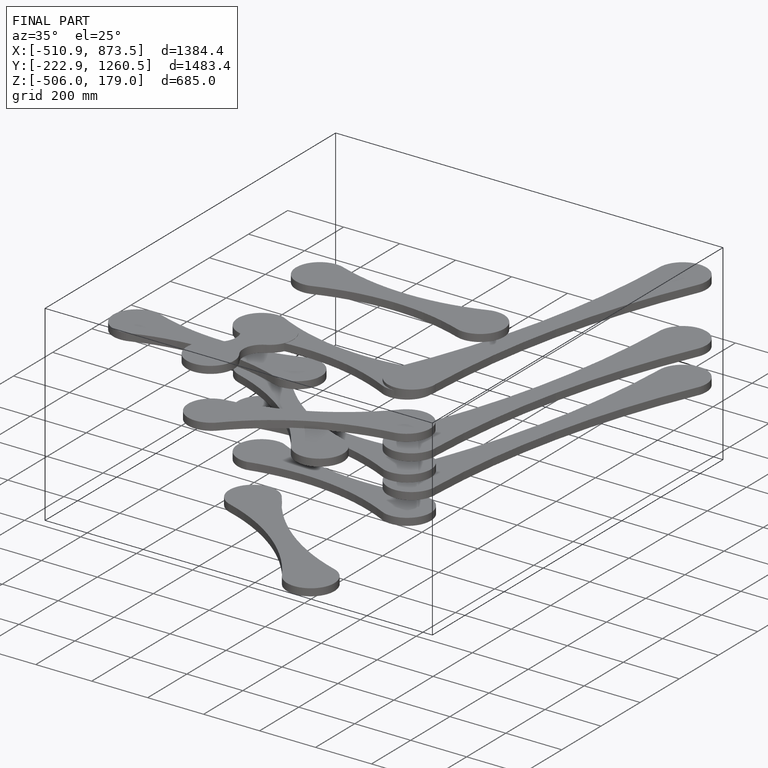
[diagram: finished part — iso view with bounding-box wireframe]
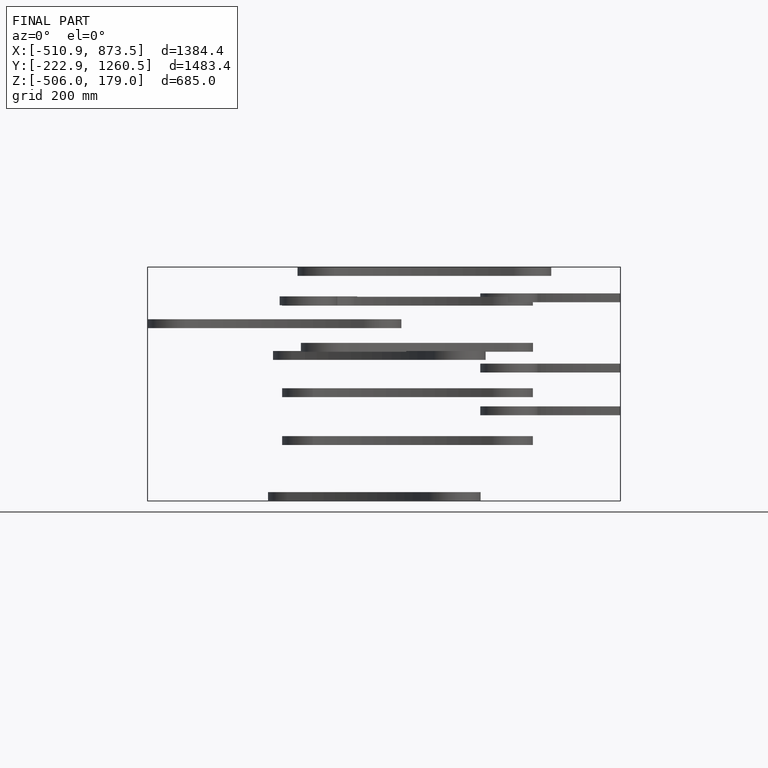
[diagram: finished part — front view with bounding-box wireframe]
